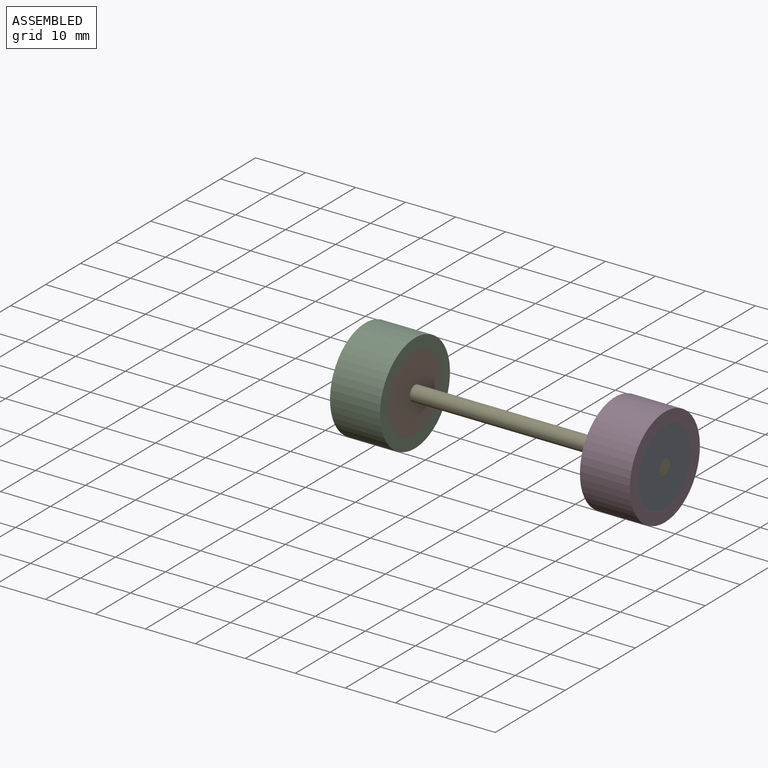
[diagram: assembled view]
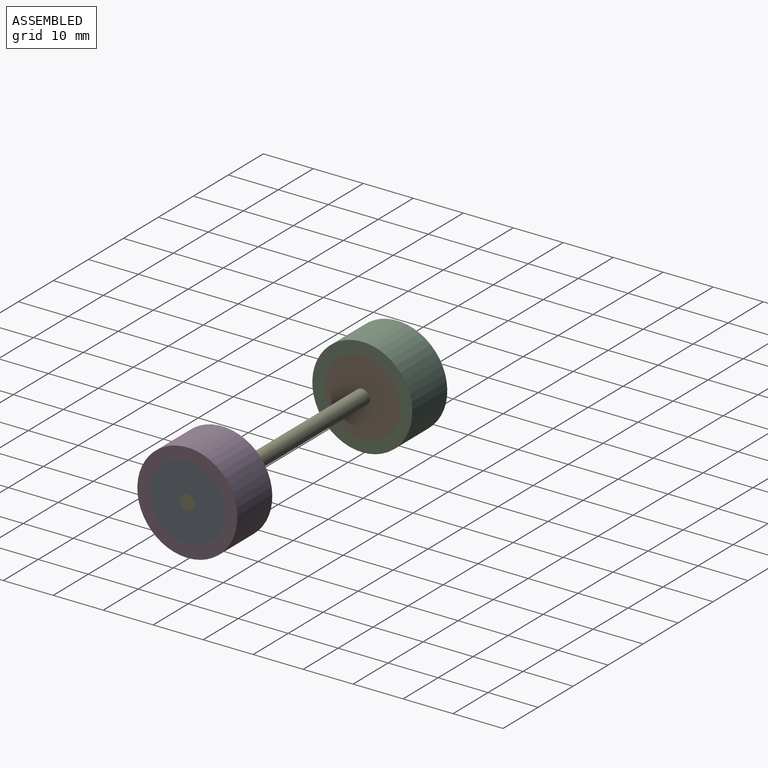
[diagram: assembled view, second angle]
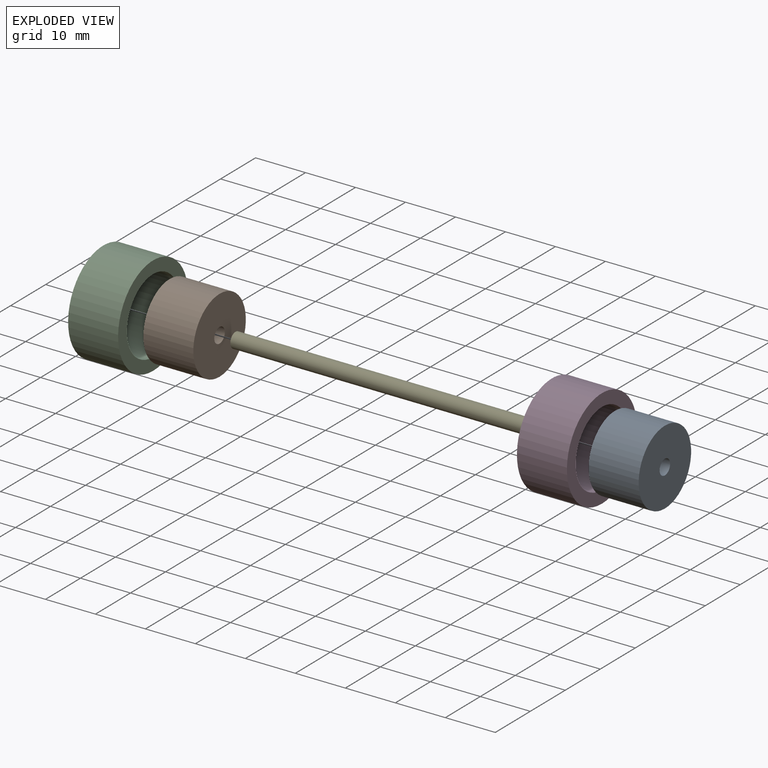
[diagram: exploded view]
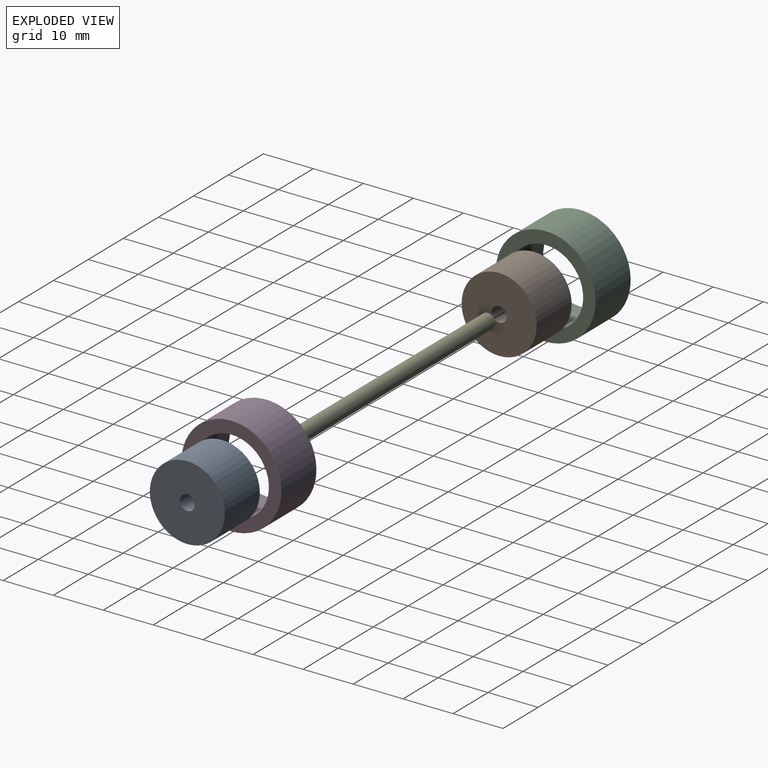
[diagram: exploded view, second angle]
ASSEMBLY  parts=5 mates=4
PART A: 4 faces, bbox 10x15x15 mm
  f0: cylinder r=1.5mm len=10mm, axis (1,0,0), area 94.2mm2, adj f2,f3
  f1: cylinder r=7.5mm len=15mm, axis (1,0,0), area 471.2mm2, adj f2,f3
  f2: plane 15x15mm, normal (1,0,0), area 169.6mm2, adj f0,f1
  f3: plane 15x15mm, normal (-1,0,0), area 169.6mm2, adj f0,f1
PART B: same geometry as A
PART C: 4 faces, bbox 10x20x20 mm
  f0: cylinder r=7.5mm len=15mm, axis (1,0,0), area 471.2mm2, adj f2,f3
  f1: cylinder r=10mm len=20mm, axis (1,0,0), area 628.3mm2, adj f2,f3
  f2: plane 20x20mm, normal (1,0,0), area 137.4mm2, adj f0,f1
  f3: plane 20x20mm, normal (-1,0,0), area 137.4mm2, adj f0,f1
PART D: same geometry as C
PART E: 3 faces, bbox 60x3x3 mm
  f0: cylinder r=1.5mm len=60mm, axis (1,0,0), area 565.5mm2, adj f1,f2
  f1: plane 3x3mm, normal (1,0,0), area 7.1mm2, adj f0
  f2: plane 3x3mm, normal (-1,0,0), area 7.1mm2, adj f0
PLACE A t=(27.27,10.29,-22.64)mm
PLACE B rot(axis=(0,0,1),180deg) t=(-12.73,-88.45,-22.64)mm
PLACE C rot(axis=(0,0,-1),180deg) t=(-12.73,-60.42,-22.64)mm
PLACE D t=(27.27,-17.74,-22.64)mm
PLACE E t=(-22.73,30.13,-22.64)mm
MATE fastened A.f0 <-> E.f0  axis (1,0,0) through (37.27,-39.08,-22.64)mm
MATE fastened B.f0 <-> E.f0  axis (-1,0,0) through (-22.73,-39.08,-22.64)mm
MATE fastened C.f0 <-> B.f0  axis (1,0,0) through (-12.73,-39.08,-22.64)mm
MATE fastened D.f0 <-> A.f0  axis (-1,0,0) through (27.27,-39.08,-22.64)mm
